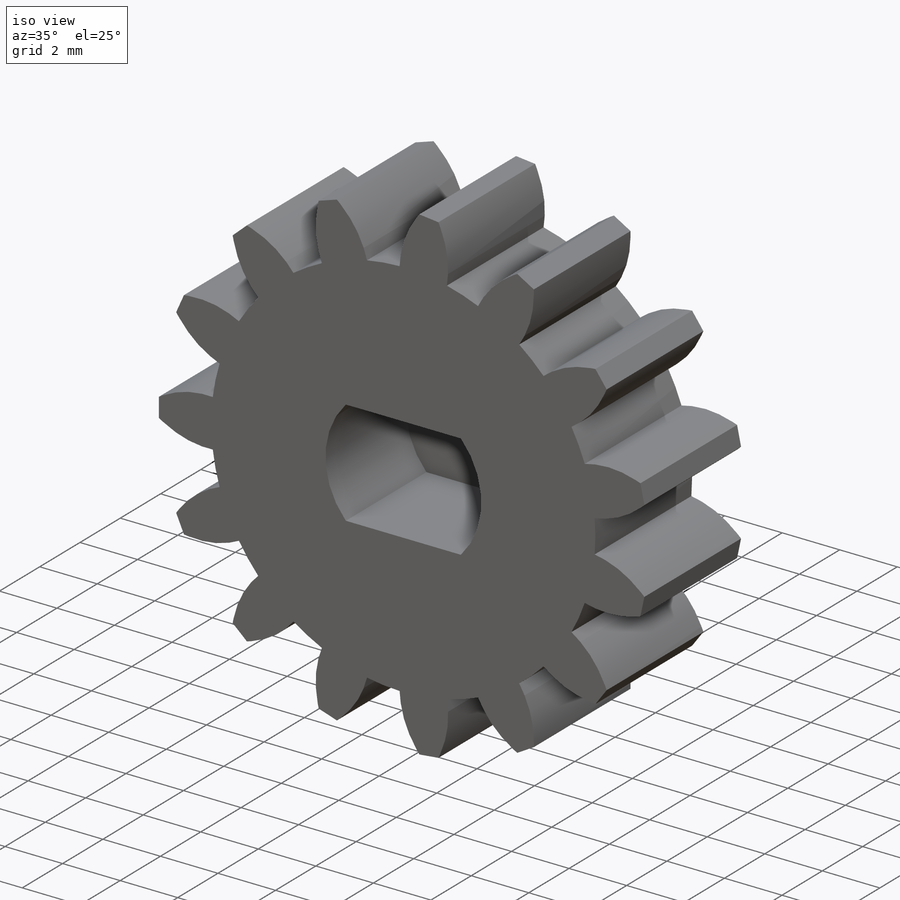
[diagram: iso view]
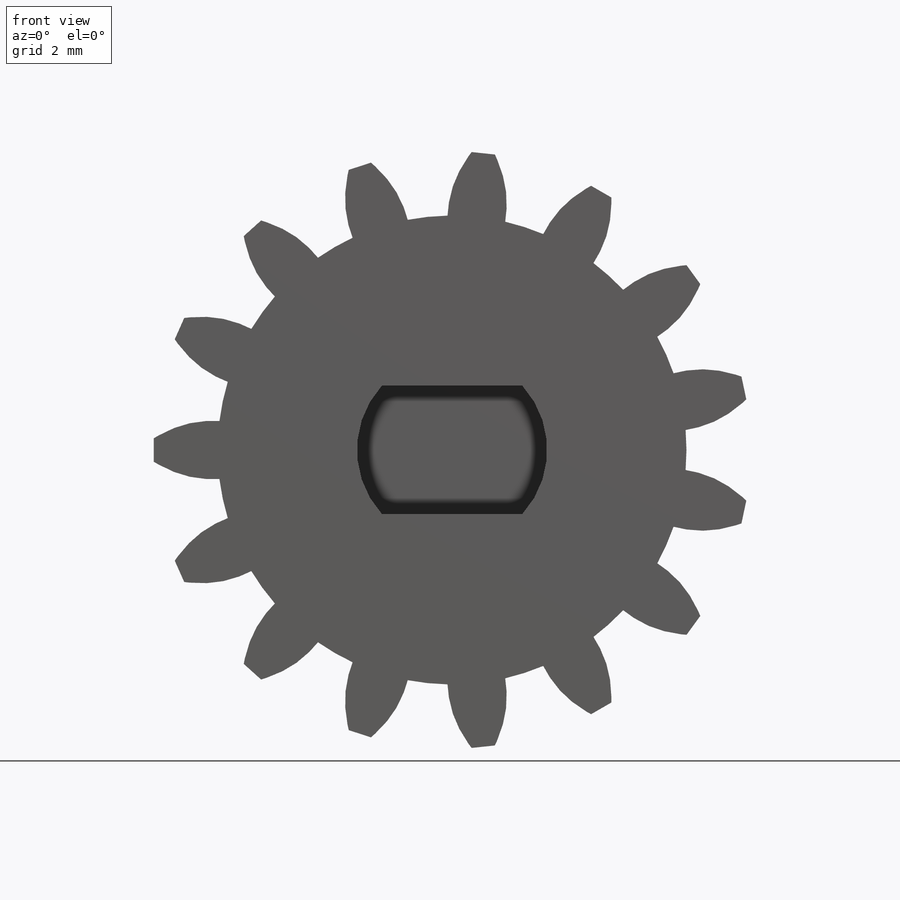
[diagram: front view]
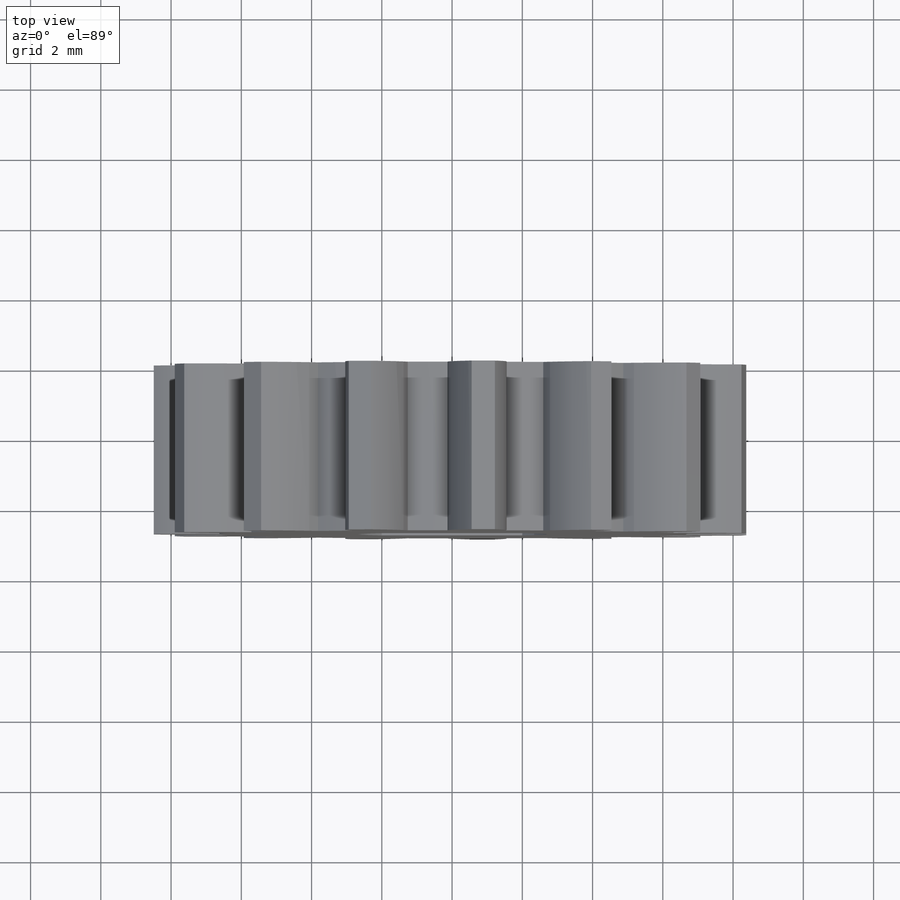
[diagram: top view]
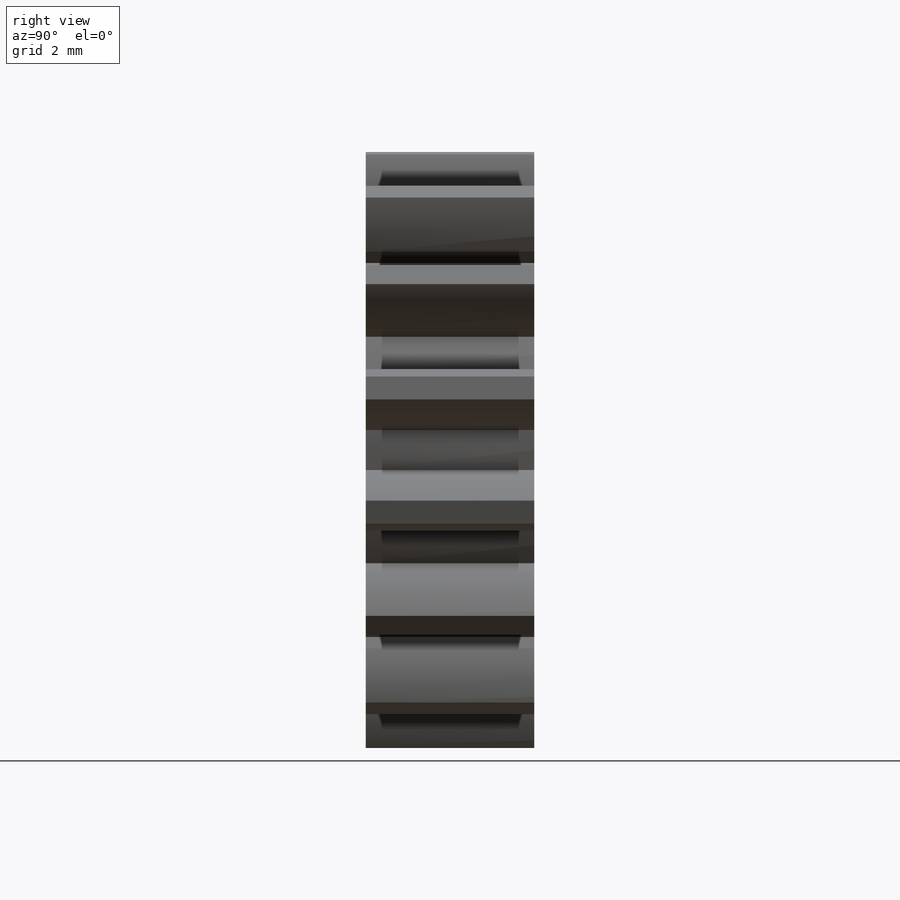
[diagram: right view]
SOLIDWORKS PART (.sldprt)
format: sldprt  version: not decoded by parser v0  size: 366,592 bytes
history: native  units: mm
features: sketch x5, extrude x2, cut_extrude x2, material x1, pattern_circular x1 (+14 scaffold rows collapsed)
feature tree (25):
  scaffold x14  (default folders/planes/origin — collapsed)
  material  "Material <not specified>"
  sketch  "base_sketch"  dims[c1.D1=15.0mm c1.D10=~16.452305mm c1.D11=30.0mm c1.D2=~37.168328mm c2.D2=20.0deg c2.D3=~2.565151mm c2.D4=~5.684399mm c2.D5=~1.793387mm c2.D6=~5.565151mm c2.D7=~4.065151mm c2.D8=~1.105218mm c2.D9=~7.065151mm c2.D11=~0.452305mm c3.D4=1.5mm c3.D5=1.5mm c3.D8=1.5mm]
  sketch  "tooth"  dims[c1.D2=17.0mm c1.D1=15.0mm c2.D1=6.0deg c2.D3=0.375mm]
  sketch  "Sketch12"
  extrude  "core_cyl"  Depth=4.8mm
  extrude  "tooth_ex"  Depth=4.8mm
  pattern_circular  "CirPattern1"  Count=15 Angle=360deg
  sketch  "Sketch14"  dims[D1=5.15mm]
  cut_extrude  "Cut-Extrude2"  [1 undecoded]
  sketch  "Sketch13"  dims[D1=3.65mm D2=4.0mm]
  cut_extrude  "Cut-Extrude1"  Depth=4mm
decode coverage: 8 of 10 modeling features carry decoded parameters
note: ~ marks probable driven/reference dimensions
note: 1 parameter value undecoded
note: suppression state not decoded; provenance and decode notes live in map.json
